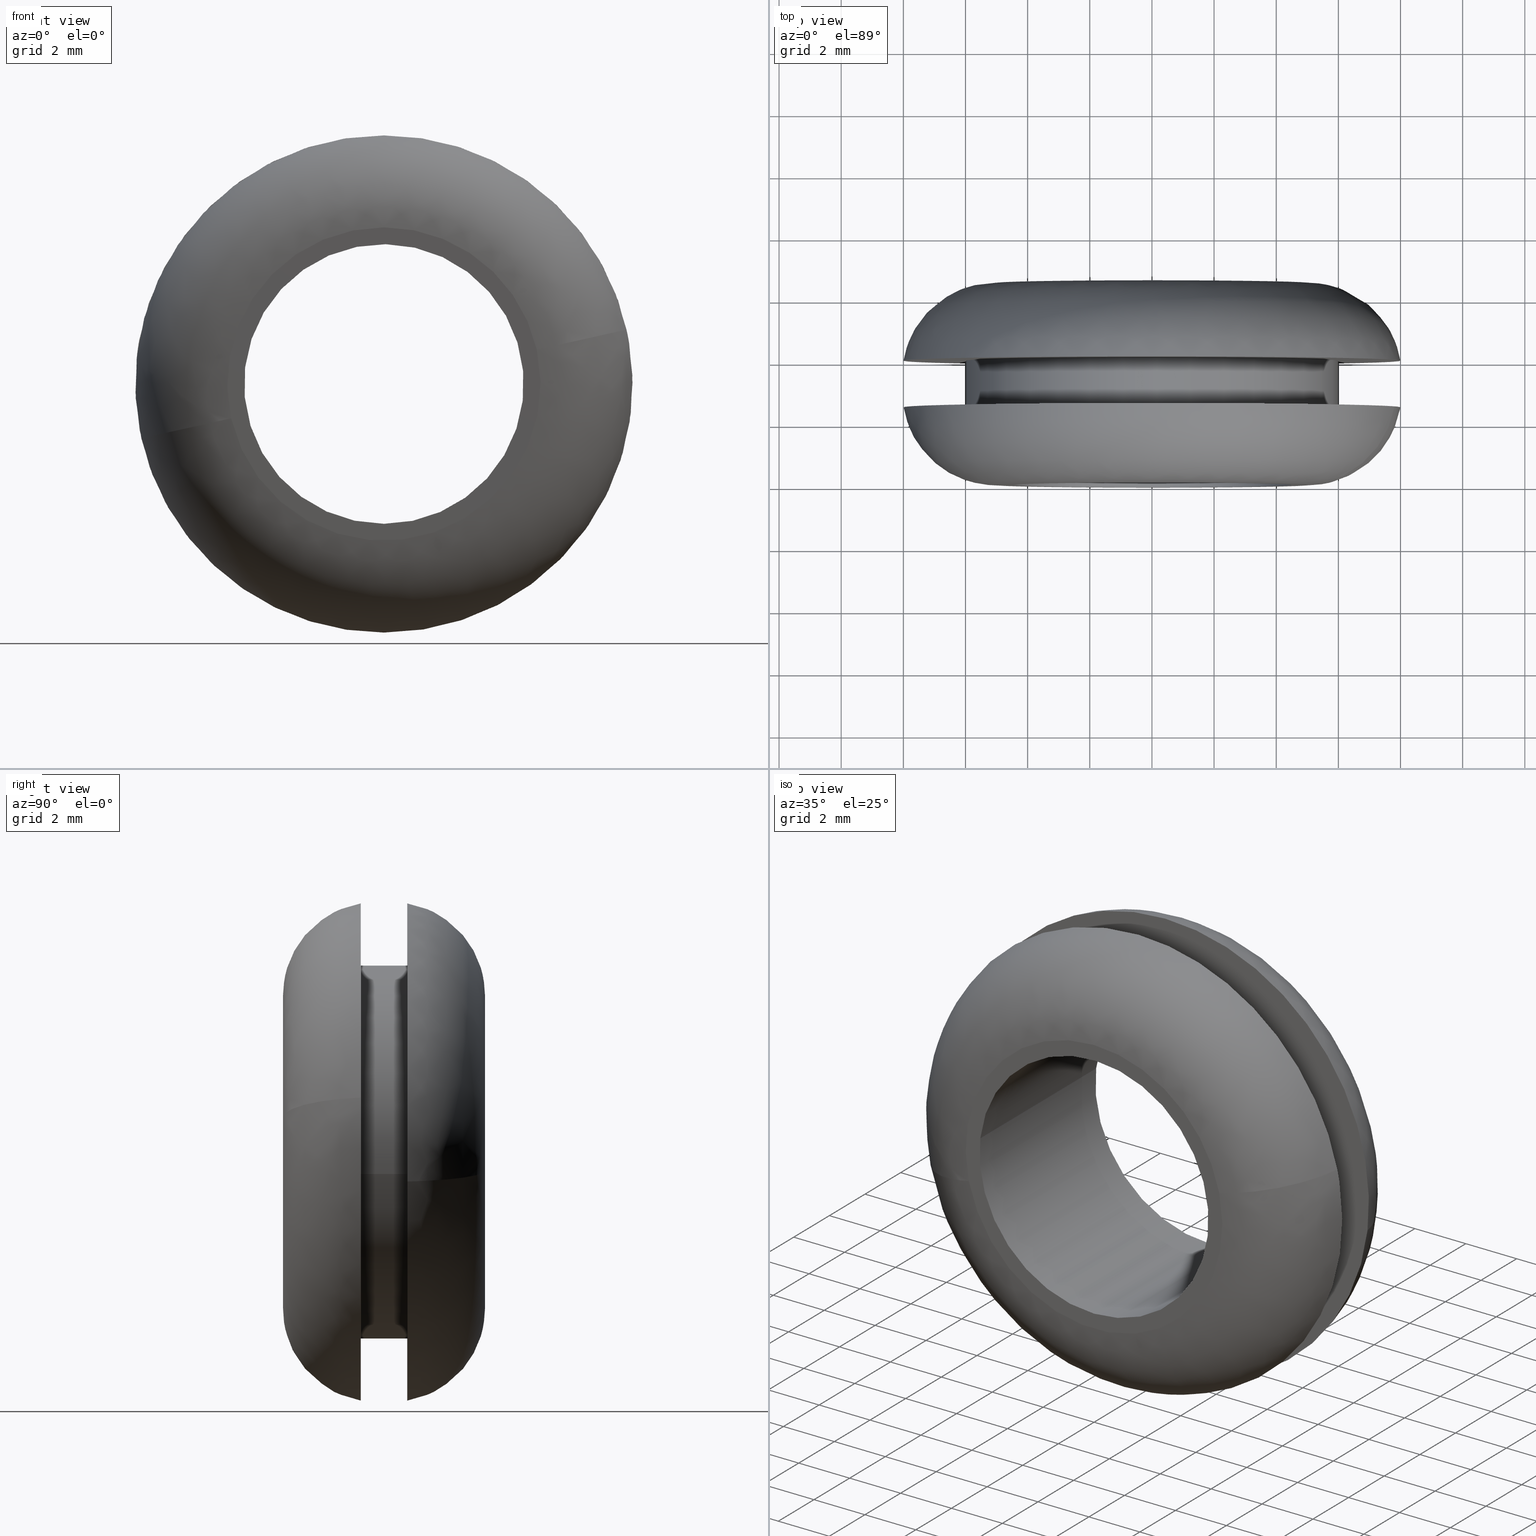
[diagram: canonical four-view strip — front | top / right | iso, engineering-drawing reading convention]
A machine part, canonical four-view strip (front | top / right | iso — engineering-drawing reading convention). The complete STEP part file that produces these views, byte-faithful:
ISO-10303-21;
HEADER;

FILE_DESCRIPTION( (''), '2;1');
FILE_NAME ('PC50.12492.TM_KG_16_CRUL_7944.stp','2019-12-19T11:13:17',(''),(''),'spGate 15.6.1','','');

FILE_SCHEMA (('AUTOMOTIVE_DESIGN'));
ENDSEC;

DATA;
#10=(GEOMETRIC_REPRESENTATION_CONTEXT(3) GLOBAL_UNCERTAINTY_ASSIGNED_CONTEXT((#11)) GLOBAL_UNIT_ASSIGNED_CONTEXT((#12,#13,#14)) REPRESENTATION_CONTEXT('ID1','3D'));
#11=UNCERTAINTY_MEASURE_WITH_UNIT(LENGTH_MEASURE(0.01),#15,'DISTANCE_ACCURACY_VALUE','Maximum model space distance between geometric entities at asserted connectivities');
#12=(NAMED_UNIT(*) SI_UNIT($,.STERADIAN.) SOLID_ANGLE_UNIT());
#13=(CONVERSION_BASED_UNIT('DEGREE',#16) NAMED_UNIT(#17) PLANE_ANGLE_UNIT());
#14=(LENGTH_UNIT() NAMED_UNIT(*) SI_UNIT(.MILLI.,.METRE.));
#15=(LENGTH_UNIT() NAMED_UNIT(*) SI_UNIT(.MILLI.,.METRE.));
#16=PLANE_ANGLE_MEASURE_WITH_UNIT(PLANE_ANGLE_MEASURE(0.01745329252),#18);
#17=DIMENSIONAL_EXPONENTS(0.0,0.0,0.0,0.0,0.0,0.0,0.0);
#18=(NAMED_UNIT(*) PLANE_ANGLE_UNIT() SI_UNIT($,.RADIAN.));
#19=MANIFOLD_SOLID_BREP('TM_KG_16',#31);
#20=ADVANCED_BREP_SHAPE_REPRESENTATION('',(#19),#10);
#21=APPLICATION_CONTEXT('');
#22=APPLICATION_PROTOCOL_DEFINITION('International Standard','automotive_design',1999,#21);
#23=PRODUCT_DEFINITION_CONTEXT('',#21,'design');
#24=PRODUCT_CONTEXT('',#21,'mechanical');
#25=PRODUCT('','','',(#24));
#26=PRODUCT_DEFINITION_FORMATION_WITH_SPECIFIED_SOURCE('','',#25,.NOT_KNOWN.);
#27=PRODUCT_RELATED_PRODUCT_CATEGORY('tool','tool',(#25));
#28=PRODUCT_DEFINITION('','',#26,#23);
#29=PRODUCT_DEFINITION_SHAPE('','',#28);
#30=SHAPE_DEFINITION_REPRESENTATION(#29,#20);
#31=CLOSED_SHELL('',(#40,#41,#42,#43,#44,#45,#46,#47,#48,#49,#50,#51));
#32=COLOUR_RGB('',0.00000000000E+000,0.00000000000E+000,0.00000000000E+000);
#33=FILL_AREA_STYLE_COLOUR('',#32);
#34=FILL_AREA_STYLE('',(#33));
#35=SURFACE_STYLE_FILL_AREA(#34);
#36=SURFACE_SIDE_STYLE('',(#35));
#37=SURFACE_STYLE_USAGE(.BOTH.,#36);
#38=PRESENTATION_STYLE_ASSIGNMENT((#37));
#39=STYLED_ITEM('',(#38),#19);
#40=ADVANCED_FACE('',(#53,#54),#52,.F.);
#41=ADVANCED_FACE('',(#64,#65),#63,.F.);
#42=ADVANCED_FACE('',(#75,#76),#74,.F.);
#43=ADVANCED_FACE('',(#86,#87),#85,.F.);
#44=ADVANCED_FACE('',(#97),#96,.T.);
#45=ADVANCED_FACE('',(#107),#106,.T.);
#46=ADVANCED_FACE('',(#117),#116,.F.);
#47=ADVANCED_FACE('',(#127),#126,.F.);
#48=ADVANCED_FACE('',(#137),#136,.T.);
#49=ADVANCED_FACE('',(#147),#146,.T.);
#50=ADVANCED_FACE('',(#157),#156,.T.);
#51=ADVANCED_FACE('',(#167),#166,.T.);
#52=PLANE('',#179);
#53=FACE_OUTER_BOUND('',#180,.T.);
#54=FACE_BOUND('',#181,.T.);
#55=COLOUR_RGB('',1.00000000000E+000,1.00000000000E+000,1.00000000000E+000);
#56=FILL_AREA_STYLE_COLOUR('',#55);
#57=FILL_AREA_STYLE('',(#56));
#58=SURFACE_STYLE_FILL_AREA(#57);
#59=SURFACE_SIDE_STYLE('',(#58));
#60=SURFACE_STYLE_USAGE(.BOTH.,#59);
#61=PRESENTATION_STYLE_ASSIGNMENT((#60));
#62=STYLED_ITEM('',(#61),#40);
#63=PLANE('',#185);
#64=FACE_OUTER_BOUND('',#186,.T.);
#65=FACE_BOUND('',#187,.T.);
#66=COLOUR_RGB('',1.00000000000E+000,1.00000000000E+000,1.00000000000E+000);
#67=FILL_AREA_STYLE_COLOUR('',#66);
#68=FILL_AREA_STYLE('',(#67));
#69=SURFACE_STYLE_FILL_AREA(#68);
#70=SURFACE_SIDE_STYLE('',(#69));
#71=SURFACE_STYLE_USAGE(.BOTH.,#70);
#72=PRESENTATION_STYLE_ASSIGNMENT((#71));
#73=STYLED_ITEM('',(#72),#41);
#74=PLANE('',#191);
#75=FACE_OUTER_BOUND('',#192,.T.);
#76=FACE_BOUND('',#193,.T.);
#77=COLOUR_RGB('',1.00000000000E+000,1.00000000000E+000,1.00000000000E+000);
#78=FILL_AREA_STYLE_COLOUR('',#77);
#79=FILL_AREA_STYLE('',(#78));
#80=SURFACE_STYLE_FILL_AREA(#79);
#81=SURFACE_SIDE_STYLE('',(#80));
#82=SURFACE_STYLE_USAGE(.BOTH.,#81);
#83=PRESENTATION_STYLE_ASSIGNMENT((#82));
#84=STYLED_ITEM('',(#83),#42);
#85=PLANE('',#197);
#86=FACE_OUTER_BOUND('',#198,.T.);
#87=FACE_BOUND('',#199,.T.);
#88=COLOUR_RGB('',1.00000000000E+000,1.00000000000E+000,1.00000000000E+000);
#89=FILL_AREA_STYLE_COLOUR('',#88);
#90=FILL_AREA_STYLE('',(#89));
#91=SURFACE_STYLE_FILL_AREA(#90);
#92=SURFACE_SIDE_STYLE('',(#91));
#93=SURFACE_STYLE_USAGE(.BOTH.,#92);
#94=PRESENTATION_STYLE_ASSIGNMENT((#93));
#95=STYLED_ITEM('',(#94),#43);
#96=CYLINDRICAL_SURFACE('',#203,6.00000000000E+000);
#97=FACE_OUTER_BOUND('',#204,.T.);
#98=COLOUR_RGB('',1.00000000000E+000,1.00000000000E+000,1.00000000000E+000);
#99=FILL_AREA_STYLE_COLOUR('',#98);
#100=FILL_AREA_STYLE('',(#99));
#101=SURFACE_STYLE_FILL_AREA(#100);
#102=SURFACE_SIDE_STYLE('',(#101));
#103=SURFACE_STYLE_USAGE(.BOTH.,#102);
#104=PRESENTATION_STYLE_ASSIGNMENT((#103));
#105=STYLED_ITEM('',(#104),#44);
#106=CYLINDRICAL_SURFACE('',#208,6.00000000000E+000);
#107=FACE_OUTER_BOUND('',#209,.T.);
#108=COLOUR_RGB('',1.00000000000E+000,1.00000000000E+000,1.00000000000E+000);
#109=FILL_AREA_STYLE_COLOUR('',#108);
#110=FILL_AREA_STYLE('',(#109));
#111=SURFACE_STYLE_FILL_AREA(#110);
#112=SURFACE_SIDE_STYLE('',(#111));
#113=SURFACE_STYLE_USAGE(.BOTH.,#112);
#114=PRESENTATION_STYLE_ASSIGNMENT((#113));
#115=STYLED_ITEM('',(#114),#45);
#116=CYLINDRICAL_SURFACE('',#213,4.50000000000E+000);
#117=FACE_OUTER_BOUND('',#214,.T.);
#118=COLOUR_RGB('',1.00000000000E+000,1.00000000000E+000,1.00000000000E+000);
#119=FILL_AREA_STYLE_COLOUR('',#118);
#120=FILL_AREA_STYLE('',(#119));
#121=SURFACE_STYLE_FILL_AREA(#120);
#122=SURFACE_SIDE_STYLE('',(#121));
#123=SURFACE_STYLE_USAGE(.BOTH.,#122);
#124=PRESENTATION_STYLE_ASSIGNMENT((#123));
#125=STYLED_ITEM('',(#124),#46);
#126=CYLINDRICAL_SURFACE('',#218,4.50000000000E+000);
#127=FACE_OUTER_BOUND('',#219,.T.);
#128=COLOUR_RGB('',1.00000000000E+000,1.00000000000E+000,1.00000000000E+000);
#129=FILL_AREA_STYLE_COLOUR('',#128);
#130=FILL_AREA_STYLE('',(#129));
#131=SURFACE_STYLE_FILL_AREA(#130);
#132=SURFACE_SIDE_STYLE('',(#131));
#133=SURFACE_STYLE_USAGE(.BOTH.,#132);
#134=PRESENTATION_STYLE_ASSIGNMENT((#133));
#135=STYLED_ITEM('',(#134),#47);
#136=( BOUNDED_SURFACE() B_SPLINE_SURFACE( 2,2,((#220,#221,#222,#223,#224),(#225,#226,#227,#228,#229),(#230,#231,#232,#233,#234),(#235,#236,#237,#238,#239),(#240,#241,#242,#243,#244)), .UNSPECIFIED.,.F.,.F.,.F.) B_SPLINE_SURFACE_WITH_KNOTS((3,2,3),(3,2,3),(0.00000000000E+000,5.00000000000E-001,1.00000000000E+000),(0.00000000000E+000,5.00000000000E-001,1.00000000000E+000), .UNSPECIFIED. ) GEOMETRIC_REPRESENTATION_ITEM() RATIONAL_B_SPLINE_SURFACE(((1.00000000000E+000,7.63657505014E-001,1.00000000000E+000,7.63657505014E-001,1.00000000000E+000),(7.07106781187E-001,5.39987400299E-001,7.07106781187E-001,5.39987400299E-001,7.07106781187E-001),(1.00000000000E+000,7.63657505014E-001,1.00000000000E+000,7.63657505014E-001,1.00000000000E+000),(7.07106781187E-001,5.39987400299E-001,7.07106781187E-001,5.39987400299E-001,7.07106781187E-001),(1.00000000000E+000,7.63657505014E-001,1.00000000000E+000,7.63657505014E-001,1.00000000000E+000))) REPRESENTATION_ITEM('') SURFACE() );
#137=FACE_OUTER_BOUND('',#245,.T.);
#138=COLOUR_RGB('',1.00000000000E+000,1.00000000000E+000,1.00000000000E+000);
#139=FILL_AREA_STYLE_COLOUR('',#138);
#140=FILL_AREA_STYLE('',(#139));
#141=SURFACE_STYLE_FILL_AREA(#140);
#142=SURFACE_SIDE_STYLE('',(#141));
#143=SURFACE_STYLE_USAGE(.BOTH.,#142);
#144=PRESENTATION_STYLE_ASSIGNMENT((#143));
#145=STYLED_ITEM('',(#144),#48);
#146=( BOUNDED_SURFACE() B_SPLINE_SURFACE( 2,2,((#246,#247,#248,#249,#250),(#251,#252,#253,#254,#255),(#256,#257,#258,#259,#260),(#261,#262,#263,#264,#265),(#266,#267,#268,#269,#270)), .UNSPECIFIED.,.F.,.F.,.F.) B_SPLINE_SURFACE_WITH_KNOTS((3,2,3),(3,2,3),(0.00000000000E+000,5.00000000000E-001,1.00000000000E+000),(0.00000000000E+000,5.00000000000E-001,1.00000000000E+000), .UNSPECIFIED. ) GEOMETRIC_REPRESENTATION_ITEM() RATIONAL_B_SPLINE_SURFACE(((1.00000000000E+000,7.63657505014E-001,1.00000000000E+000,7.63657505014E-001,1.00000000000E+000),(7.07106781187E-001,5.39987400299E-001,7.07106781187E-001,5.39987400299E-001,7.07106781187E-001),(1.00000000000E+000,7.63657505014E-001,1.00000000000E+000,7.63657505014E-001,1.00000000000E+000),(7.07106781187E-001,5.39987400299E-001,7.07106781187E-001,5.39987400299E-001,7.07106781187E-001),(1.00000000000E+000,7.63657505014E-001,1.00000000000E+000,7.63657505014E-001,1.00000000000E+000))) REPRESENTATION_ITEM('') SURFACE() );
#147=FACE_OUTER_BOUND('',#271,.T.);
#148=COLOUR_RGB('',1.00000000000E+000,1.00000000000E+000,1.00000000000E+000);
#149=FILL_AREA_STYLE_COLOUR('',#148);
#150=FILL_AREA_STYLE('',(#149));
#151=SURFACE_STYLE_FILL_AREA(#150);
#152=SURFACE_SIDE_STYLE('',(#151));
#153=SURFACE_STYLE_USAGE(.BOTH.,#152);
#154=PRESENTATION_STYLE_ASSIGNMENT((#153));
#155=STYLED_ITEM('',(#154),#49);
#156=( BOUNDED_SURFACE() B_SPLINE_SURFACE( 2,2,((#272,#273,#274,#275,#276),(#277,#278,#279,#280,#281),(#282,#283,#284,#285,#286),(#287,#288,#289,#290,#291),(#292,#293,#294,#295,#296)), .UNSPECIFIED.,.F.,.F.,.F.) B_SPLINE_SURFACE_WITH_KNOTS((3,2,3),(3,2,3),(0.00000000000E+000,5.00000000000E-001,1.00000000000E+000),(0.00000000000E+000,5.00000000000E-001,1.00000000000E+000), .UNSPECIFIED. ) GEOMETRIC_REPRESENTATION_ITEM() RATIONAL_B_SPLINE_SURFACE(((1.00000000000E+000,7.63668789557E-001,1.00000000000E+000,7.63668789557E-001,1.00000000000E+000),(7.07106781187E-001,5.39995379676E-001,7.07106781187E-001,5.39995379676E-001,7.07106781187E-001),(1.00000000000E+000,7.63668789557E-001,1.00000000000E+000,7.63668789557E-001,1.00000000000E+000),(7.07106781187E-001,5.39995379676E-001,7.07106781187E-001,5.39995379676E-001,7.07106781187E-001),(1.00000000000E+000,7.63668789557E-001,1.00000000000E+000,7.63668789557E-001,1.00000000000E+000))) REPRESENTATION_ITEM('') SURFACE() );
#157=FACE_OUTER_BOUND('',#297,.T.);
#158=COLOUR_RGB('',1.00000000000E+000,1.00000000000E+000,1.00000000000E+000);
#159=FILL_AREA_STYLE_COLOUR('',#158);
#160=FILL_AREA_STYLE('',(#159));
#161=SURFACE_STYLE_FILL_AREA(#160);
#162=SURFACE_SIDE_STYLE('',(#161));
#163=SURFACE_STYLE_USAGE(.BOTH.,#162);
#164=PRESENTATION_STYLE_ASSIGNMENT((#163));
#165=STYLED_ITEM('',(#164),#50);
#166=( BOUNDED_SURFACE() B_SPLINE_SURFACE( 2,2,((#298,#299,#300,#301,#302),(#303,#304,#305,#306,#307),(#308,#309,#310,#311,#312),(#313,#314,#315,#316,#317),(#318,#319,#320,#321,#322)), .UNSPECIFIED.,.F.,.F.,.F.) B_SPLINE_SURFACE_WITH_KNOTS((3,2,3),(3,2,3),(0.00000000000E+000,5.00000000000E-001,1.00000000000E+000),(0.00000000000E+000,5.00000000000E-001,1.00000000000E+000), .UNSPECIFIED. ) GEOMETRIC_REPRESENTATION_ITEM() RATIONAL_B_SPLINE_SURFACE(((1.00000000000E+000,7.63668789557E-001,1.00000000000E+000,7.63668789557E-001,1.00000000000E+000),(7.07106781187E-001,5.39995379676E-001,7.07106781187E-001,5.39995379676E-001,7.07106781187E-001),(1.00000000000E+000,7.63668789557E-001,1.00000000000E+000,7.63668789557E-001,1.00000000000E+000),(7.07106781187E-001,5.39995379676E-001,7.07106781187E-001,5.39995379676E-001,7.07106781187E-001),(1.00000000000E+000,7.63668789557E-001,1.00000000000E+000,7.63668789557E-001,1.00000000000E+000))) REPRESENTATION_ITEM('') SURFACE() );
#167=FACE_OUTER_BOUND('',#323,.T.);
#168=COLOUR_RGB('',1.00000000000E+000,1.00000000000E+000,1.00000000000E+000);
#169=FILL_AREA_STYLE_COLOUR('',#168);
#170=FILL_AREA_STYLE('',(#169));
#171=SURFACE_STYLE_FILL_AREA(#170);
#172=SURFACE_SIDE_STYLE('',(#171));
#173=SURFACE_STYLE_USAGE(.BOTH.,#172);
#174=PRESENTATION_STYLE_ASSIGNMENT((#173));
#175=STYLED_ITEM('',(#174),#51);
#176=CARTESIAN_POINT('',(-1.14033918207E+001,3.99999999414E+000,-9.59999998990E+000));
#177=DIRECTION('',(0.00000000000E+000,1.00000000000E+000,0.00000000000E+000));
#178=DIRECTION('',(0.00000000000E+000,0.00000000000E+000,1.00000000000E+000));
#179=AXIS2_PLACEMENT_3D('',#176,#177,#178);
#180=EDGE_LOOP('',(#324,#325,#326,#327,#328));
#181=EDGE_LOOP('',(#329,#330,#331));
#182=CARTESIAN_POINT('',(-1.04795170677E+001,6.50000000000E+000,1.15965080000E+001));
#183=DIRECTION('',(0.00000000000E+000,-1.00000000000E+000,0.00000000000E+000));
#184=DIRECTION('',(0.00000000000E+000,0.00000000000E+000,-1.00000000000E+000));
#185=AXIS2_PLACEMENT_3D('',#182,#183,#184);
#186=EDGE_LOOP('',(#332,#333,#334));
#187=EDGE_LOOP('',(#335,#336,#337));
#188=CARTESIAN_POINT('',(-1.19344541311E+001,2.50000000000E+000,9.60000014521E+000));
#189=DIRECTION('',(0.00000000000E+000,-1.00000000000E+000,0.00000000000E+000));
#190=DIRECTION('',(0.00000000000E+000,0.00000000000E+000,-1.00000000000E+000));
#191=AXIS2_PLACEMENT_3D('',#188,#189,#190);
#192=EDGE_LOOP('',(#338,#339,#340,#341,#342));
#193=EDGE_LOOP('',(#343,#344,#345));
#194=CARTESIAN_POINT('',(-1.04795170681E+001,-8.76385900000E-016,-1.15965080003E+001));
#195=DIRECTION('',(0.00000000000E+000,1.00000000000E+000,0.00000000000E+000));
#196=DIRECTION('',(0.00000000000E+000,0.00000000000E+000,1.00000000000E+000));
#197=AXIS2_PLACEMENT_3D('',#194,#195,#196);
#198=EDGE_LOOP('',(#346,#347,#348));
#199=EDGE_LOOP('',(#349,#350,#351));
#200=CARTESIAN_POINT('',(4.70539397474E-016,4.03750000000E+000,1.82735762207E-016));
#201=DIRECTION('',(1.41441697970E-016,1.00000000000E+000,1.81699675896E-015));
#202=DIRECTION('',(-9.93009526364E-001,-7.40148683083E-017,1.18034234657E-001));
#203=AXIS2_PLACEMENT_3D('',#200,#201,#202);
#204=EDGE_LOOP('',(#352,#353,#354,#355));
#205=CARTESIAN_POINT('',(4.70539397474E-016,4.03750000000E+000,1.82735762207E-016));
#206=DIRECTION('',(1.41441697970E-016,1.00000000000E+000,1.81699675896E-015));
#207=DIRECTION('',(-9.93009526364E-001,-7.40148683083E-017,1.18034234657E-001));
#208=AXIS2_PLACEMENT_3D('',#205,#206,#207);
#209=EDGE_LOOP('',(#356,#357,#358,#359,#360,#361));
#210=CARTESIAN_POINT('',(-3.48595419141E-016,6.66250000000E+000,-7.89650400714E-015));
#211=DIRECTION('',(-1.70677333352E-016,1.00000000000E+000,-2.27197397273E-015));
#212=DIRECTION('',(-9.93009526364E-001,9.86864910778E-017,1.18034234657E-001));
#213=AXIS2_PLACEMENT_3D('',#210,#211,#212);
#214=EDGE_LOOP('',(#362,#363,#364,#365));
#215=CARTESIAN_POINT('',(-3.48595419141E-016,6.66250000000E+000,-7.89650400714E-015));
#216=DIRECTION('',(-1.70677333352E-016,1.00000000000E+000,-2.27197397273E-015));
#217=DIRECTION('',(-9.93009526364E-001,9.86864910778E-017,1.18034234657E-001));
#218=AXIS2_PLACEMENT_3D('',#215,#216,#217);
#219=EDGE_LOOP('',(#366,#367,#368,#369,#370,#371));
#220=CARTESIAN_POINT('',(-2.06909352512E+000,3.99903670978E+000,2.46773316555E-001));
#221=CARTESIAN_POINT('',(-2.48802680367E+000,6.50000000000E+000,2.96737976591E-001));
#222=CARTESIAN_POINT('',(-5.00647847470E+000,6.50000000000E+000,5.97104617295E-001));
#223=CARTESIAN_POINT('',(-7.52493014572E+000,6.50000000000E+000,8.97471258000E-001));
#224=CARTESIAN_POINT('',(-7.94386342428E+000,3.99903670978E+000,9.47435918035E-001));
#225=CARTESIAN_POINT('',(-2.31586684167E+000,3.99903670978E+000,-1.82232020856E+000));
#226=CARTESIAN_POINT('',(-2.78476478026E+000,6.50000000000E+000,-2.19128882708E+000));
#227=CARTESIAN_POINT('',(-5.60358309199E+000,6.50000000000E+000,-4.40937385740E+000));
#228=CARTESIAN_POINT('',(-8.42240140372E+000,6.50000000000E+000,-6.62745888772E+000));
#229=CARTESIAN_POINT('',(-8.89129934231E+000,3.99903670978E+000,-6.99642750624E+000));
#230=CARTESIAN_POINT('',(-2.46773316555E-001,3.99903670978E+000,-2.06909352512E+000));
#231=CARTESIAN_POINT('',(-2.96737976591E-001,6.50000000000E+000,-2.48802680367E+000));
#232=CARTESIAN_POINT('',(-5.97104617295E-001,6.50000000000E+000,-5.00647847470E+000));
#233=CARTESIAN_POINT('',(-8.97471258000E-001,6.50000000000E+000,-7.52493014572E+000));
#234=CARTESIAN_POINT('',(-9.47435918035E-001,3.99903670978E+000,-7.94386342428E+000));
#235=CARTESIAN_POINT('',(1.82232020856E+000,3.99903670978E+000,-2.31586684167E+000));
#236=CARTESIAN_POINT('',(2.19128882708E+000,6.50000000000E+000,-2.78476478026E+000));
#237=CARTESIAN_POINT('',(4.40937385740E+000,6.50000000000E+000,-5.60358309199E+000));
#238=CARTESIAN_POINT('',(6.62745888772E+000,6.50000000000E+000,-8.42240140372E+000));
#239=CARTESIAN_POINT('',(6.99642750624E+000,3.99903670978E+000,-8.89129934231E+000));
#240=CARTESIAN_POINT('',(2.06909352512E+000,3.99903670978E+000,-2.46773316555E-001));
#241=CARTESIAN_POINT('',(2.48802680367E+000,6.50000000000E+000,-2.96737976591E-001));
#242=CARTESIAN_POINT('',(5.00647847470E+000,6.50000000000E+000,-5.97104617295E-001));
#243=CARTESIAN_POINT('',(7.52493014572E+000,6.50000000000E+000,-8.97471258000E-001));
#244=CARTESIAN_POINT('',(7.94386342428E+000,3.99903670978E+000,-9.47435918035E-001));
#245=EDGE_LOOP('',(#372,#373,#374,#375,#376,#377));
#246=CARTESIAN_POINT('',(2.06909352512E+000,3.99903670978E+000,-2.46773316555E-001));
#247=CARTESIAN_POINT('',(2.48802680367E+000,6.50000000000E+000,-2.96737976591E-001));
#248=CARTESIAN_POINT('',(5.00647847470E+000,6.50000000000E+000,-5.97104617295E-001));
#249=CARTESIAN_POINT('',(7.52493014572E+000,6.50000000000E+000,-8.97471258000E-001));
#250=CARTESIAN_POINT('',(7.94386342428E+000,3.99903670978E+000,-9.47435918035E-001));
#251=CARTESIAN_POINT('',(2.31586684167E+000,3.99903670978E+000,1.82232020856E+000));
#252=CARTESIAN_POINT('',(2.78476478026E+000,6.50000000000E+000,2.19128882708E+000));
#253=CARTESIAN_POINT('',(5.60358309199E+000,6.50000000000E+000,4.40937385740E+000));
#254=CARTESIAN_POINT('',(8.42240140372E+000,6.50000000000E+000,6.62745888772E+000));
#255=CARTESIAN_POINT('',(8.89129934231E+000,3.99903670978E+000,6.99642750624E+000));
#256=CARTESIAN_POINT('',(2.46773316555E-001,3.99903670978E+000,2.06909352512E+000));
#257=CARTESIAN_POINT('',(2.96737976591E-001,6.50000000000E+000,2.48802680367E+000));
#258=CARTESIAN_POINT('',(5.97104617295E-001,6.50000000000E+000,5.00647847470E+000));
#259=CARTESIAN_POINT('',(8.97471258000E-001,6.50000000000E+000,7.52493014572E+000));
#260=CARTESIAN_POINT('',(9.47435918035E-001,3.99903670978E+000,7.94386342428E+000));
#261=CARTESIAN_POINT('',(-1.82232020856E+000,3.99903670978E+000,2.31586684167E+000));
#262=CARTESIAN_POINT('',(-2.19128882708E+000,6.50000000000E+000,2.78476478026E+000));
#263=CARTESIAN_POINT('',(-4.40937385740E+000,6.50000000000E+000,5.60358309199E+000));
#264=CARTESIAN_POINT('',(-6.62745888772E+000,6.50000000000E+000,8.42240140372E+000));
#265=CARTESIAN_POINT('',(-6.99642750624E+000,3.99903670978E+000,8.89129934231E+000));
#266=CARTESIAN_POINT('',(-2.06909352512E+000,3.99903670978E+000,2.46773316555E-001));
#267=CARTESIAN_POINT('',(-2.48802680367E+000,6.50000000000E+000,2.96737976591E-001));
#268=CARTESIAN_POINT('',(-5.00647847470E+000,6.50000000000E+000,5.97104617295E-001));
#269=CARTESIAN_POINT('',(-7.52493014572E+000,6.50000000000E+000,8.97471258000E-001));
#270=CARTESIAN_POINT('',(-7.94386342428E+000,3.99903670978E+000,9.47435918035E-001));
#271=EDGE_LOOP('',(#378,#379,#380,#381,#382,#383));
#272=CARTESIAN_POINT('',(7.80629619409E+000,2.50085987914E+000,1.75044608514E+000));
#273=CARTESIAN_POINT('',(7.39454615052E+000,-5.81520701020E-016,1.65811724776E+000));
#274=CARTESIAN_POINT('',(4.91978990655E+000,-8.88178419700E-016,1.10318988257E+000));
#275=CARTESIAN_POINT('',(2.44503366258E+000,-1.16304140204E-015,5.48262517369E-001));
#276=CARTESIAN_POINT('',(2.03328361902E+000,2.50085987914E+000,4.55933679993E-001));
#277=CARTESIAN_POINT('',(6.05585010895E+000,2.50085987914E+000,9.55674227922E+000));
#278=CARTESIAN_POINT('',(5.73642890276E+000,2.40873761163E-016,9.05266339828E+000));
#279=CARTESIAN_POINT('',(3.81660002399E+000,-2.60141436227E-016,6.02297978912E+000));
#280=CARTESIAN_POINT('',(1.89677114522E+000,-1.16304140204E-015,2.99329617995E+000));
#281=CARTESIAN_POINT('',(1.57734993902E+000,2.50085987914E+000,2.48921729901E+000));
#282=CARTESIAN_POINT('',(-1.75044608514E+000,2.50085987914E+000,7.80629619409E+000));
#283=CARTESIAN_POINT('',(-1.65811724776E+000,5.81520701020E-016,7.39454615052E+000));
#284=CARTESIAN_POINT('',(-1.10318988257E+000,-4.44089209850E-016,4.91978990655E+000));
#285=CARTESIAN_POINT('',(-5.48262517369E-001,-5.81520701020E-016,2.44503366258E+000));
#286=CARTESIAN_POINT('',(-4.55933679993E-001,2.50085987914E+000,2.03328361902E+000));
#287=CARTESIAN_POINT('',(-9.55674227922E+000,2.50085987914E+000,6.05585010895E+000));
#288=CARTESIAN_POINT('',(-9.05266339828E+000,-3.40646939857E-016,5.73642890276E+000));
#289=CARTESIAN_POINT('',(-6.02297978912E+000,-7.04230646077E-016,3.81660002399E+000));
#290=CARTESIAN_POINT('',(-2.99329617995E+000,-1.16304140204E-015,1.89677114522E+000));
#291=CARTESIAN_POINT('',(-2.48921729901E+000,2.50085987914E+000,1.57734993902E+000));
#292=CARTESIAN_POINT('',(-7.80629619409E+000,2.50085987914E+000,-1.75044608514E+000));
#293=CARTESIAN_POINT('',(-7.39454615052E+000,-1.16304140204E-015,-1.65811724776E+000));
#294=CARTESIAN_POINT('',(-4.91978990655E+000,-1.33226762955E-015,-1.10318988257E+000));
#295=CARTESIAN_POINT('',(-2.44503366258E+000,-1.16304140204E-015,-5.48262517369E-001));
#296=CARTESIAN_POINT('',(-2.03328361902E+000,2.50085987914E+000,-4.55933679993E-001));
#297=EDGE_LOOP('',(#384,#385,#386,#387,#388,#389));
#298=CARTESIAN_POINT('',(-7.80629619409E+000,2.50085987914E+000,-1.75044608514E+000));
#299=CARTESIAN_POINT('',(-7.39454615052E+000,-5.81520701020E-016,-1.65811724776E+000));
#300=CARTESIAN_POINT('',(-4.91978990655E+000,-1.77635683940E-015,-1.10318988257E+000));
#301=CARTESIAN_POINT('',(-2.44503366258E+000,-1.74456210306E-015,-5.48262517369E-001));
#302=CARTESIAN_POINT('',(-2.03328361902E+000,2.50085987914E+000,-4.55933679993E-001));
#303=CARTESIAN_POINT('',(-6.05585010895E+000,2.50085987914E+000,-9.55674227922E+000));
#304=CARTESIAN_POINT('',(-5.73642890276E+000,-1.40391516320E-015,-9.05266339828E+000));
#305=CARTESIAN_POINT('',(-3.81660002399E+000,-2.40439382287E-015,-6.02297978912E+000));
#306=CARTESIAN_POINT('',(-1.89677114522E+000,-1.74456210306E-015,-2.99329617995E+000));
#307=CARTESIAN_POINT('',(-1.57734993902E+000,2.50085987914E+000,-2.48921729901E+000));
#308=CARTESIAN_POINT('',(1.75044608514E+000,2.50085987914E+000,-7.80629619409E+000));
#309=CARTESIAN_POINT('',(1.65811724776E+000,-1.74456210306E-015,-7.39454615052E+000));
#310=CARTESIAN_POINT('',(1.10318988257E+000,-2.22044604925E-015,-4.91978990655E+000));
#311=CARTESIAN_POINT('',(5.48262517369E-001,-2.32608280408E-015,-2.44503366258E+000));
#312=CARTESIAN_POINT('',(4.55933679993E-001,2.50085987914E+000,-2.03328361902E+000));
#313=CARTESIAN_POINT('',(9.55674227922E+000,2.50085987914E+000,-6.05585010895E+000));
#314=CARTESIAN_POINT('',(9.05266339828E+000,-8.22394462183E-016,-5.73642890276E+000));
#315=CARTESIAN_POINT('',(6.02297978912E+000,-1.96030461302E-015,-3.81660002399E+000));
#316=CARTESIAN_POINT('',(2.99329617995E+000,-1.74456210306E-015,-1.89677114522E+000));
#317=CARTESIAN_POINT('',(2.48921729901E+000,2.50085987914E+000,-1.57734993902E+000));
#318=CARTESIAN_POINT('',(7.80629619409E+000,2.50085987914E+000,1.75044608514E+000));
#319=CARTESIAN_POINT('',(7.39454615052E+000,0.00000000000E+000,1.65811724776E+000));
#320=CARTESIAN_POINT('',(4.91978990655E+000,-1.33226762955E-015,1.10318988257E+000));
#321=CARTESIAN_POINT('',(2.44503366258E+000,-1.74456210306E-015,5.48262517369E-001));
#322=CARTESIAN_POINT('',(2.03328361902E+000,2.50085987914E+000,4.55933679993E-001));
#323=EDGE_LOOP('',(#390,#391,#392,#393,#394,#395));
#324=ORIENTED_EDGE('',*,*,#396,.T.);
#325=ORIENTED_EDGE('',*,*,#397,.T.);
#326=ORIENTED_EDGE('',*,*,#398,.T.);
#327=ORIENTED_EDGE('',*,*,#399,.T.);
#328=ORIENTED_EDGE('',*,*,#400,.T.);
#329=ORIENTED_EDGE('',*,*,#401,.F.);
#330=ORIENTED_EDGE('',*,*,#402,.F.);
#331=ORIENTED_EDGE('',*,*,#403,.F.);
#332=ORIENTED_EDGE('',*,*,#404,.F.);
#333=ORIENTED_EDGE('',*,*,#405,.F.);
#334=ORIENTED_EDGE('',*,*,#406,.F.);
#335=ORIENTED_EDGE('',*,*,#407,.T.);
#336=ORIENTED_EDGE('',*,*,#408,.T.);
#337=ORIENTED_EDGE('',*,*,#409,.T.);
#338=ORIENTED_EDGE('',*,*,#410,.F.);
#339=ORIENTED_EDGE('',*,*,#411,.F.);
#340=ORIENTED_EDGE('',*,*,#412,.F.);
#341=ORIENTED_EDGE('',*,*,#413,.F.);
#342=ORIENTED_EDGE('',*,*,#414,.F.);
#343=ORIENTED_EDGE('',*,*,#415,.T.);
#344=ORIENTED_EDGE('',*,*,#416,.T.);
#345=ORIENTED_EDGE('',*,*,#417,.T.);
#346=ORIENTED_EDGE('',*,*,#418,.T.);
#347=ORIENTED_EDGE('',*,*,#419,.T.);
#348=ORIENTED_EDGE('',*,*,#420,.T.);
#349=ORIENTED_EDGE('',*,*,#421,.F.);
#350=ORIENTED_EDGE('',*,*,#422,.F.);
#351=ORIENTED_EDGE('',*,*,#423,.F.);
#352=ORIENTED_EDGE('',*,*,#402,.T.);
#353=ORIENTED_EDGE('',*,*,#424,.F.);
#354=ORIENTED_EDGE('',*,*,#416,.F.);
#355=ORIENTED_EDGE('',*,*,#425,.T.);
#356=ORIENTED_EDGE('',*,*,#415,.F.);
#357=ORIENTED_EDGE('',*,*,#417,.F.);
#358=ORIENTED_EDGE('',*,*,#424,.T.);
#359=ORIENTED_EDGE('',*,*,#401,.T.);
#360=ORIENTED_EDGE('',*,*,#403,.T.);
#361=ORIENTED_EDGE('',*,*,#425,.F.);
#362=ORIENTED_EDGE('',*,*,#422,.T.);
#363=ORIENTED_EDGE('',*,*,#426,.T.);
#364=ORIENTED_EDGE('',*,*,#408,.F.);
#365=ORIENTED_EDGE('',*,*,#427,.F.);
#366=ORIENTED_EDGE('',*,*,#407,.F.);
#367=ORIENTED_EDGE('',*,*,#409,.F.);
#368=ORIENTED_EDGE('',*,*,#426,.F.);
#369=ORIENTED_EDGE('',*,*,#421,.T.);
#370=ORIENTED_EDGE('',*,*,#423,.T.);
#371=ORIENTED_EDGE('',*,*,#427,.T.);
#372=ORIENTED_EDGE('',*,*,#400,.F.);
#373=ORIENTED_EDGE('',*,*,#399,.F.);
#374=ORIENTED_EDGE('',*,*,#428,.F.);
#375=ORIENTED_EDGE('',*,*,#404,.T.);
#376=ORIENTED_EDGE('',*,*,#406,.T.);
#377=ORIENTED_EDGE('',*,*,#429,.T.);
#378=ORIENTED_EDGE('',*,*,#405,.T.);
#379=ORIENTED_EDGE('',*,*,#428,.T.);
#380=ORIENTED_EDGE('',*,*,#398,.F.);
#381=ORIENTED_EDGE('',*,*,#397,.F.);
#382=ORIENTED_EDGE('',*,*,#396,.F.);
#383=ORIENTED_EDGE('',*,*,#429,.F.);
#384=ORIENTED_EDGE('',*,*,#418,.F.);
#385=ORIENTED_EDGE('',*,*,#420,.F.);
#386=ORIENTED_EDGE('',*,*,#430,.F.);
#387=ORIENTED_EDGE('',*,*,#411,.T.);
#388=ORIENTED_EDGE('',*,*,#410,.T.);
#389=ORIENTED_EDGE('',*,*,#431,.T.);
#390=ORIENTED_EDGE('',*,*,#414,.T.);
#391=ORIENTED_EDGE('',*,*,#413,.T.);
#392=ORIENTED_EDGE('',*,*,#412,.T.);
#393=ORIENTED_EDGE('',*,*,#430,.T.);
#394=ORIENTED_EDGE('',*,*,#419,.F.);
#395=ORIENTED_EDGE('',*,*,#431,.F.);
#396=EDGE_CURVE('',#432,#433,#434,.T.);
#397=EDGE_CURVE('',#433,#440,#441,.T.);
#398=EDGE_CURVE('',#440,#447,#448,.T.);
#399=EDGE_CURVE('',#447,#454,#455,.T.);
#400=EDGE_CURVE('',#454,#432,#461,.T.);
#401=EDGE_CURVE('',#467,#468,#469,.T.);
#402=EDGE_CURVE('',#475,#467,#476,.T.);
#403=EDGE_CURVE('',#468,#475,#482,.T.);
#404=EDGE_CURVE('',#488,#489,#490,.T.);
#405=EDGE_CURVE('',#496,#488,#497,.T.);
#406=EDGE_CURVE('',#489,#496,#503,.T.);
#407=EDGE_CURVE('',#509,#510,#511,.T.);
#408=EDGE_CURVE('',#510,#517,#518,.T.);
#409=EDGE_CURVE('',#517,#509,#524,.T.);
#410=EDGE_CURVE('',#530,#531,#532,.T.);
#411=EDGE_CURVE('',#538,#530,#539,.T.);
#412=EDGE_CURVE('',#545,#538,#546,.T.);
#413=EDGE_CURVE('',#552,#545,#553,.T.);
#414=EDGE_CURVE('',#531,#552,#559,.T.);
#415=EDGE_CURVE('',#565,#566,#567,.T.);
#416=EDGE_CURVE('',#566,#573,#574,.T.);
#417=EDGE_CURVE('',#573,#565,#580,.T.);
#418=EDGE_CURVE('',#586,#587,#588,.T.);
#419=EDGE_CURVE('',#587,#594,#595,.T.);
#420=EDGE_CURVE('',#594,#586,#601,.T.);
#421=EDGE_CURVE('',#607,#608,#609,.T.);
#422=EDGE_CURVE('',#615,#607,#616,.T.);
#423=EDGE_CURVE('',#608,#615,#622,.T.);
#424=EDGE_CURVE('',#573,#467,#628,.T.);
#425=EDGE_CURVE('',#566,#475,#634,.T.);
#426=EDGE_CURVE('',#607,#517,#640,.T.);
#427=EDGE_CURVE('',#615,#510,#646,.T.);
#428=EDGE_CURVE('',#488,#447,#652,.T.);
#429=EDGE_CURVE('',#496,#432,#658,.T.);
#430=EDGE_CURVE('',#538,#594,#664,.T.);
#431=EDGE_CURVE('',#531,#587,#670,.T.);
#432=VERTEX_POINT('',#676);
#433=VERTEX_POINT('',#677);
#434=CIRCLE('',#681,7.99999971676E+000);
#435=COLOUR_RGB('',1.00000000000E+000,1.00000000000E+000,1.00000000000E+000);
#436=DRAUGHTING_PRE_DEFINED_CURVE_FONT('continuous');
#437=CURVE_STYLE( '',#436, POSITIVE_LENGTH_MEASURE(1.00000000000E-006),#435);
#438=PRESENTATION_STYLE_ASSIGNMENT((#437));
#439=STYLED_ITEM('',(#438),#396);
#440=VERTEX_POINT('',#682);
#441=CIRCLE('',#686,7.99999970527E+000);
#442=COLOUR_RGB('',1.00000000000E+000,1.00000000000E+000,1.00000000000E+000);
#443=DRAUGHTING_PRE_DEFINED_CURVE_FONT('continuous');
#444=CURVE_STYLE( '',#443, POSITIVE_LENGTH_MEASURE(1.00000000000E-006),#442);
#445=PRESENTATION_STYLE_ASSIGNMENT((#444));
#446=STYLED_ITEM('',(#445),#397);
#447=VERTEX_POINT('',#687);
#448=CIRCLE('',#691,7.99999970759E+000);
#449=COLOUR_RGB('',1.00000000000E+000,1.00000000000E+000,1.00000000000E+000);
#450=DRAUGHTING_PRE_DEFINED_CURVE_FONT('continuous');
#451=CURVE_STYLE( '',#450, POSITIVE_LENGTH_MEASURE(1.00000000000E-006),#449);
#452=PRESENTATION_STYLE_ASSIGNMENT((#451));
#453=STYLED_ITEM('',(#452),#398);
#454=VERTEX_POINT('',#692);
#455=CIRCLE('',#696,7.99999970759E+000);
#456=COLOUR_RGB('',1.00000000000E+000,1.00000000000E+000,1.00000000000E+000);
#457=DRAUGHTING_PRE_DEFINED_CURVE_FONT('continuous');
#458=CURVE_STYLE( '',#457, POSITIVE_LENGTH_MEASURE(1.00000000000E-006),#456);
#459=PRESENTATION_STYLE_ASSIGNMENT((#458));
#460=STYLED_ITEM('',(#459),#399);
#461=CIRCLE('',#700,7.99999970652E+000);
#462=COLOUR_RGB('',1.00000000000E+000,1.00000000000E+000,1.00000000000E+000);
#463=DRAUGHTING_PRE_DEFINED_CURVE_FONT('continuous');
#464=CURVE_STYLE( '',#463, POSITIVE_LENGTH_MEASURE(1.00000000000E-006),#462);
#465=PRESENTATION_STYLE_ASSIGNMENT((#464));
#466=STYLED_ITEM('',(#465),#400);
#467=VERTEX_POINT('',#701);
#468=VERTEX_POINT('',#702);
#469=CIRCLE('',#706,6.00000000000E+000);
#470=COLOUR_RGB('',1.00000000000E+000,1.00000000000E+000,1.00000000000E+000);
#471=DRAUGHTING_PRE_DEFINED_CURVE_FONT('continuous');
#472=CURVE_STYLE( '',#471, POSITIVE_LENGTH_MEASURE(1.00000000000E-006),#470);
#473=PRESENTATION_STYLE_ASSIGNMENT((#472));
#474=STYLED_ITEM('',(#473),#401);
#475=VERTEX_POINT('',#707);
#476=CIRCLE('',#711,6.00000000000E+000);
#477=COLOUR_RGB('',1.00000000000E+000,1.00000000000E+000,1.00000000000E+000);
#478=DRAUGHTING_PRE_DEFINED_CURVE_FONT('continuous');
#479=CURVE_STYLE( '',#478, POSITIVE_LENGTH_MEASURE(1.00000000000E-006),#477);
#480=PRESENTATION_STYLE_ASSIGNMENT((#479));
#481=STYLED_ITEM('',(#480),#402);
#482=CIRCLE('',#715,6.00000000000E+000);
#483=COLOUR_RGB('',1.00000000000E+000,1.00000000000E+000,1.00000000000E+000);
#484=DRAUGHTING_PRE_DEFINED_CURVE_FONT('continuous');
#485=CURVE_STYLE( '',#484, POSITIVE_LENGTH_MEASURE(1.00000000000E-006),#483);
#486=PRESENTATION_STYLE_ASSIGNMENT((#485));
#487=STYLED_ITEM('',(#486),#403);
#488=VERTEX_POINT('',#716);
#489=VERTEX_POINT('',#717);
#490=CIRCLE('',#721,5.04196000002E+000);
#491=COLOUR_RGB('',1.00000000000E+000,1.00000000000E+000,1.00000000000E+000);
#492=DRAUGHTING_PRE_DEFINED_CURVE_FONT('continuous');
#493=CURVE_STYLE( '',#492, POSITIVE_LENGTH_MEASURE(1.00000000000E-006),#491);
#494=PRESENTATION_STYLE_ASSIGNMENT((#493));
#495=STYLED_ITEM('',(#494),#404);
#496=VERTEX_POINT('',#722);
#497=CIRCLE('',#726,5.04196000002E+000);
#498=COLOUR_RGB('',1.00000000000E+000,1.00000000000E+000,1.00000000000E+000);
#499=DRAUGHTING_PRE_DEFINED_CURVE_FONT('continuous');
#500=CURVE_STYLE( '',#499, POSITIVE_LENGTH_MEASURE(1.00000000000E-006),#498);
#501=PRESENTATION_STYLE_ASSIGNMENT((#500));
#502=STYLED_ITEM('',(#501),#405);
#503=CIRCLE('',#730,5.04196000002E+000);
#504=COLOUR_RGB('',1.00000000000E+000,1.00000000000E+000,1.00000000000E+000);
#505=DRAUGHTING_PRE_DEFINED_CURVE_FONT('continuous');
#506=CURVE_STYLE( '',#505, POSITIVE_LENGTH_MEASURE(1.00000000000E-006),#504);
#507=PRESENTATION_STYLE_ASSIGNMENT((#506));
#508=STYLED_ITEM('',(#507),#406);
#509=VERTEX_POINT('',#731);
#510=VERTEX_POINT('',#732);
#511=CIRCLE('',#736,4.50000000000E+000);
#512=COLOUR_RGB('',1.00000000000E+000,1.00000000000E+000,1.00000000000E+000);
#513=DRAUGHTING_PRE_DEFINED_CURVE_FONT('continuous');
#514=CURVE_STYLE( '',#513, POSITIVE_LENGTH_MEASURE(1.00000000000E-006),#512);
#515=PRESENTATION_STYLE_ASSIGNMENT((#514));
#516=STYLED_ITEM('',(#515),#407);
#517=VERTEX_POINT('',#737);
#518=CIRCLE('',#741,4.50000000000E+000);
#519=COLOUR_RGB('',1.00000000000E+000,1.00000000000E+000,1.00000000000E+000);
#520=DRAUGHTING_PRE_DEFINED_CURVE_FONT('continuous');
#521=CURVE_STYLE( '',#520, POSITIVE_LENGTH_MEASURE(1.00000000000E-006),#519);
#522=PRESENTATION_STYLE_ASSIGNMENT((#521));
#523=STYLED_ITEM('',(#522),#408);
#524=CIRCLE('',#745,4.50000000000E+000);
#525=COLOUR_RGB('',1.00000000000E+000,1.00000000000E+000,1.00000000000E+000);
#526=DRAUGHTING_PRE_DEFINED_CURVE_FONT('continuous');
#527=CURVE_STYLE( '',#526, POSITIVE_LENGTH_MEASURE(1.00000000000E-006),#525);
#528=PRESENTATION_STYLE_ASSIGNMENT((#527));
#529=STYLED_ITEM('',(#528),#409);
#530=VERTEX_POINT('',#746);
#531=VERTEX_POINT('',#747);
#532=CIRCLE('',#751,7.99999992893E+000);
#533=COLOUR_RGB('',1.00000000000E+000,1.00000000000E+000,1.00000000000E+000);
#534=DRAUGHTING_PRE_DEFINED_CURVE_FONT('continuous');
#535=CURVE_STYLE( '',#534, POSITIVE_LENGTH_MEASURE(1.00000000000E-006),#533);
#536=PRESENTATION_STYLE_ASSIGNMENT((#535));
#537=STYLED_ITEM('',(#536),#410);
#538=VERTEX_POINT('',#752);
#539=CIRCLE('',#756,8.00000051559E+000);
#540=COLOUR_RGB('',1.00000000000E+000,1.00000000000E+000,1.00000000000E+000);
#541=DRAUGHTING_PRE_DEFINED_CURVE_FONT('continuous');
#542=CURVE_STYLE( '',#541, POSITIVE_LENGTH_MEASURE(1.00000000000E-006),#540);
#543=PRESENTATION_STYLE_ASSIGNMENT((#542));
#544=STYLED_ITEM('',(#543),#411);
#545=VERTEX_POINT('',#757);
#546=CIRCLE('',#761,8.00000051559E+000);
#547=COLOUR_RGB('',1.00000000000E+000,1.00000000000E+000,1.00000000000E+000);
#548=DRAUGHTING_PRE_DEFINED_CURVE_FONT('continuous');
#549=CURVE_STYLE( '',#548, POSITIVE_LENGTH_MEASURE(1.00000000000E-006),#547);
#550=PRESENTATION_STYLE_ASSIGNMENT((#549));
#551=STYLED_ITEM('',(#550),#412);
#552=VERTEX_POINT('',#762);
#553=CIRCLE('',#766,8.00000047739E+000);
#554=COLOUR_RGB('',1.00000000000E+000,1.00000000000E+000,1.00000000000E+000);
#555=DRAUGHTING_PRE_DEFINED_CURVE_FONT('continuous');
#556=CURVE_STYLE( '',#555, POSITIVE_LENGTH_MEASURE(1.00000000000E-006),#554);
#557=PRESENTATION_STYLE_ASSIGNMENT((#556));
#558=STYLED_ITEM('',(#557),#413);
#559=CIRCLE('',#770,7.99999992096E+000);
#560=COLOUR_RGB('',1.00000000000E+000,1.00000000000E+000,1.00000000000E+000);
#561=DRAUGHTING_PRE_DEFINED_CURVE_FONT('continuous');
#562=CURVE_STYLE( '',#561, POSITIVE_LENGTH_MEASURE(1.00000000000E-006),#560);
#563=PRESENTATION_STYLE_ASSIGNMENT((#562));
#564=STYLED_ITEM('',(#563),#414);
#565=VERTEX_POINT('',#771);
#566=VERTEX_POINT('',#772);
#567=CIRCLE('',#776,6.00000000000E+000);
#568=COLOUR_RGB('',1.00000000000E+000,1.00000000000E+000,1.00000000000E+000);
#569=DRAUGHTING_PRE_DEFINED_CURVE_FONT('continuous');
#570=CURVE_STYLE( '',#569, POSITIVE_LENGTH_MEASURE(1.00000000000E-006),#568);
#571=PRESENTATION_STYLE_ASSIGNMENT((#570));
#572=STYLED_ITEM('',(#571),#415);
#573=VERTEX_POINT('',#777);
#574=CIRCLE('',#781,6.00000000000E+000);
#575=COLOUR_RGB('',1.00000000000E+000,1.00000000000E+000,1.00000000000E+000);
#576=DRAUGHTING_PRE_DEFINED_CURVE_FONT('continuous');
#577=CURVE_STYLE( '',#576, POSITIVE_LENGTH_MEASURE(1.00000000000E-006),#575);
#578=PRESENTATION_STYLE_ASSIGNMENT((#577));
#579=STYLED_ITEM('',(#578),#416);
#580=CIRCLE('',#785,6.00000000000E+000);
#581=COLOUR_RGB('',1.00000000000E+000,1.00000000000E+000,1.00000000000E+000);
#582=DRAUGHTING_PRE_DEFINED_CURVE_FONT('continuous');
#583=CURVE_STYLE( '',#582, POSITIVE_LENGTH_MEASURE(1.00000000000E-006),#581);
#584=PRESENTATION_STYLE_ASSIGNMENT((#583));
#585=STYLED_ITEM('',(#584),#417);
#586=VERTEX_POINT('',#786);
#587=VERTEX_POINT('',#787);
#588=CIRCLE('',#791,5.04196000018E+000);
#589=COLOUR_RGB('',1.00000000000E+000,1.00000000000E+000,1.00000000000E+000);
#590=DRAUGHTING_PRE_DEFINED_CURVE_FONT('continuous');
#591=CURVE_STYLE( '',#590, POSITIVE_LENGTH_MEASURE(1.00000000000E-006),#589);
#592=PRESENTATION_STYLE_ASSIGNMENT((#591));
#593=STYLED_ITEM('',(#592),#418);
#594=VERTEX_POINT('',#792);
#595=CIRCLE('',#796,5.04196000018E+000);
#596=COLOUR_RGB('',1.00000000000E+000,1.00000000000E+000,1.00000000000E+000);
#597=DRAUGHTING_PRE_DEFINED_CURVE_FONT('continuous');
#598=CURVE_STYLE( '',#597, POSITIVE_LENGTH_MEASURE(1.00000000000E-006),#596);
#599=PRESENTATION_STYLE_ASSIGNMENT((#598));
#600=STYLED_ITEM('',(#599),#419);
#601=CIRCLE('',#800,5.04196000018E+000);
#602=COLOUR_RGB('',1.00000000000E+000,1.00000000000E+000,1.00000000000E+000);
#603=DRAUGHTING_PRE_DEFINED_CURVE_FONT('continuous');
#604=CURVE_STYLE( '',#603, POSITIVE_LENGTH_MEASURE(1.00000000000E-006),#602);
#605=PRESENTATION_STYLE_ASSIGNMENT((#604));
#606=STYLED_ITEM('',(#605),#420);
#607=VERTEX_POINT('',#801);
#608=VERTEX_POINT('',#802);
#609=CIRCLE('',#806,4.50000000000E+000);
#610=COLOUR_RGB('',1.00000000000E+000,1.00000000000E+000,1.00000000000E+000);
#611=DRAUGHTING_PRE_DEFINED_CURVE_FONT('continuous');
#612=CURVE_STYLE( '',#611, POSITIVE_LENGTH_MEASURE(1.00000000000E-006),#610);
#613=PRESENTATION_STYLE_ASSIGNMENT((#612));
#614=STYLED_ITEM('',(#613),#421);
#615=VERTEX_POINT('',#807);
#616=CIRCLE('',#811,4.50000000000E+000);
#617=COLOUR_RGB('',1.00000000000E+000,1.00000000000E+000,1.00000000000E+000);
#618=DRAUGHTING_PRE_DEFINED_CURVE_FONT('continuous');
#619=CURVE_STYLE( '',#618, POSITIVE_LENGTH_MEASURE(1.00000000000E-006),#617);
#620=PRESENTATION_STYLE_ASSIGNMENT((#619));
#621=STYLED_ITEM('',(#620),#422);
#622=CIRCLE('',#815,4.50000000000E+000);
#623=COLOUR_RGB('',1.00000000000E+000,1.00000000000E+000,1.00000000000E+000);
#624=DRAUGHTING_PRE_DEFINED_CURVE_FONT('continuous');
#625=CURVE_STYLE( '',#624, POSITIVE_LENGTH_MEASURE(1.00000000000E-006),#623);
#626=PRESENTATION_STYLE_ASSIGNMENT((#625));
#627=STYLED_ITEM('',(#626),#423);
#628=(BOUNDED_CURVE() B_SPLINE_CURVE(1,(#816,#817),.UNSPECIFIED.,.F.,.F.) B_SPLINE_CURVE_WITH_KNOTS((2,2),(8.33333134656E-002,9.16666653270E-001),.UNSPECIFIED.) CURVE() GEOMETRIC_REPRESENTATION_ITEM() RATIONAL_B_SPLINE_CURVE((1.00000000000E+000,1.00000000000E+000)) REPRESENTATION_ITEM('') );
#629=COLOUR_RGB('',1.00000000000E+000,1.00000000000E+000,1.00000000000E+000);
#630=DRAUGHTING_PRE_DEFINED_CURVE_FONT('continuous');
#631=CURVE_STYLE( '',#630, POSITIVE_LENGTH_MEASURE(1.00000000000E-006),#629);
#632=PRESENTATION_STYLE_ASSIGNMENT((#631));
#633=STYLED_ITEM('',(#632),#424);
#634=(BOUNDED_CURVE() B_SPLINE_CURVE(1,(#818,#819),.UNSPECIFIED.,.F.,.F.) B_SPLINE_CURVE_WITH_KNOTS((2,2),(8.33333333335E-002,9.16666666667E-001),.UNSPECIFIED.) CURVE() GEOMETRIC_REPRESENTATION_ITEM() RATIONAL_B_SPLINE_CURVE((7.50000000000E-001,7.50000000000E-001)) REPRESENTATION_ITEM('') );
#635=COLOUR_RGB('',1.00000000000E+000,1.00000000000E+000,1.00000000000E+000);
#636=DRAUGHTING_PRE_DEFINED_CURVE_FONT('continuous');
#637=CURVE_STYLE( '',#636, POSITIVE_LENGTH_MEASURE(1.00000000000E-006),#635);
#638=PRESENTATION_STYLE_ASSIGNMENT((#637));
#639=STYLED_ITEM('',(#638),#425);
#640=(BOUNDED_CURVE() B_SPLINE_CURVE(1,(#820,#821),.UNSPECIFIED.,.F.,.F.) B_SPLINE_CURVE_WITH_KNOTS((2,2),(8.33333347523E-002,9.16666664312E-001),.UNSPECIFIED.) CURVE() GEOMETRIC_REPRESENTATION_ITEM() RATIONAL_B_SPLINE_CURVE((1.00000000000E+000,1.00000000000E+000)) REPRESENTATION_ITEM('') );
#641=COLOUR_RGB('',1.00000000000E+000,1.00000000000E+000,1.00000000000E+000);
#642=DRAUGHTING_PRE_DEFINED_CURVE_FONT('continuous');
#643=CURVE_STYLE( '',#642, POSITIVE_LENGTH_MEASURE(1.00000000000E-006),#641);
#644=PRESENTATION_STYLE_ASSIGNMENT((#643));
#645=STYLED_ITEM('',(#644),#426);
#646=(BOUNDED_CURVE() B_SPLINE_CURVE(1,(#822,#823),.UNSPECIFIED.,.F.,.F.) B_SPLINE_CURVE_WITH_KNOTS((2,2),(8.33333333333E-002,9.16666666664E-001),.UNSPECIFIED.) CURVE() GEOMETRIC_REPRESENTATION_ITEM() RATIONAL_B_SPLINE_CURVE((7.50000000000E-001,7.50000000000E-001)) REPRESENTATION_ITEM('') );
#647=COLOUR_RGB('',1.00000000000E+000,1.00000000000E+000,1.00000000000E+000);
#648=DRAUGHTING_PRE_DEFINED_CURVE_FONT('continuous');
#649=CURVE_STYLE( '',#648, POSITIVE_LENGTH_MEASURE(1.00000000000E-006),#647);
#650=PRESENTATION_STYLE_ASSIGNMENT((#649));
#651=STYLED_ITEM('',(#650),#427);
#652=(BOUNDED_CURVE() B_SPLINE_CURVE(2,(#824,#825,#826),.UNSPECIFIED.,.F.,.F.) B_SPLINE_CURVE_WITH_KNOTS((3,3),(5.00000000000E-001,9.99873872845E-001),.UNSPECIFIED.) CURVE() GEOMETRIC_REPRESENTATION_ITEM() RATIONAL_B_SPLINE_CURVE((1.00000000000E+000,7.63717123427E-001,9.99880793252E-001)) REPRESENTATION_ITEM('') );
#653=COLOUR_RGB('',1.00000000000E+000,1.00000000000E+000,1.00000000000E+000);
#654=DRAUGHTING_PRE_DEFINED_CURVE_FONT('continuous');
#655=CURVE_STYLE( '',#654, POSITIVE_LENGTH_MEASURE(1.00000000000E-006),#653);
#656=PRESENTATION_STYLE_ASSIGNMENT((#655));
#657=STYLED_ITEM('',(#656),#428);
#658=(BOUNDED_CURVE() B_SPLINE_CURVE(3,(#827,#828,#829,#830,#831),.UNSPECIFIED.,.F.,.F.) B_SPLINE_CURVE_WITH_KNOTS((4,1,4),(4.99999998764E-001,7.49999999307E-001,1.00000000000E+000),.UNSPECIFIED.) CURVE() GEOMETRIC_REPRESENTATION_ITEM() RATIONAL_B_SPLINE_CURVE((1.00000000000E+000,1.00000000000E+000,1.00000000000E+000,1.00000000000E+000,1.00000000000E+000)) REPRESENTATION_ITEM('') );
#659=COLOUR_RGB('',1.00000000000E+000,1.00000000000E+000,1.00000000000E+000);
#660=DRAUGHTING_PRE_DEFINED_CURVE_FONT('continuous');
#661=CURVE_STYLE( '',#660, POSITIVE_LENGTH_MEASURE(1.00000000000E-006),#659);
#662=PRESENTATION_STYLE_ASSIGNMENT((#661));
#663=STYLED_ITEM('',(#662),#429);
#664=(BOUNDED_CURVE() B_SPLINE_CURVE(2,(#832,#833,#834),.UNSPECIFIED.,.F.,.F.) B_SPLINE_CURVE_WITH_KNOTS((3,3),(1.12082810208E-004,5.00000000000E-001),.UNSPECIFIED.) CURVE() GEOMETRIC_REPRESENTATION_ITEM() RATIONAL_B_SPLINE_CURVE((9.99894069087E-001,7.63721766889E-001,1.00000000000E+000)) REPRESENTATION_ITEM('') );
#665=COLOUR_RGB('',1.00000000000E+000,1.00000000000E+000,1.00000000000E+000);
#666=DRAUGHTING_PRE_DEFINED_CURVE_FONT('continuous');
#667=CURVE_STYLE( '',#666, POSITIVE_LENGTH_MEASURE(1.00000000000E-006),#665);
#668=PRESENTATION_STYLE_ASSIGNMENT((#667));
#669=STYLED_ITEM('',(#668),#430);
#670=(BOUNDED_CURVE() B_SPLINE_CURVE(3,(#835,#836,#837,#838,#839),.UNSPECIFIED.,.F.,.F.) B_SPLINE_CURVE_WITH_KNOTS((4,1,4),(0.00000000000E+000,2.50000192247E-001,5.00000342841E-001),.UNSPECIFIED.) CURVE() GEOMETRIC_REPRESENTATION_ITEM() RATIONAL_B_SPLINE_CURVE((1.00000000000E+000,1.00000000000E+000,1.00000000000E+000,1.00000000000E+000,1.00000000000E+000)) REPRESENTATION_ITEM('') );
#671=COLOUR_RGB('',1.00000000000E+000,1.00000000000E+000,1.00000000000E+000);
#672=DRAUGHTING_PRE_DEFINED_CURVE_FONT('continuous');
#673=CURVE_STYLE( '',#672, POSITIVE_LENGTH_MEASURE(1.00000000000E-006),#671);
#674=PRESENTATION_STYLE_ASSIGNMENT((#673));
#675=STYLED_ITEM('',(#674),#431);
#676=CARTESIAN_POINT('',(7.94370217278E+000,4.00000124913E+000,-9.47412622172E-001));
#677=CARTESIAN_POINT('',(0.00000000000E+000,3.99999998829E+000,7.99999989353E+000));
#678=CARTESIAN_POINT('',(-1.55292489978E-008,4.00000061871E+000,1.76768149895E-007));
#679=DIRECTION('',(6.99624485530E-008,-1.00000000000E+000,-7.88024094935E-008));
#680=DIRECTION('',(-9.92962808695E-001,-7.88024111664E-008,1.18426604060E-001));
#681=AXIS2_PLACEMENT_3D('',#678,#679,#680);
#682=CARTESIAN_POINT('',(-7.87651491780E+000,4.00000076765E+000,1.40018175190E+000));
#683=CARTESIAN_POINT('',(-2.39410460345E-008,4.00000093299E+000,1.88257087252E-007));
#684=DIRECTION('',(-1.17756926698E-016,-1.00000000000E+000,-1.18087852017E-007));
#685=DIRECTION('',(-2.99263086457E-009,1.18087852017E-007,-1.00000000000E+000));
#686=AXIS2_PLACEMENT_3D('',#683,#684,#685);
#687=CARTESIAN_POINT('',(-7.94370178688E+000,4.00000026276E+000,9.47416640127E-001));
#688=CARTESIAN_POINT('',(-8.81037860445E-008,4.00000108830E+000,-1.85936985364E-007));
#689=DIRECTION('',(2.32798896726E-007,-9.99999999999E-001,1.08056698130E-006));
#690=DIRECTION('',(9.84564389699E-001,4.00817005359E-008,-1.75022748627E-001));
#691=AXIS2_PLACEMENT_3D('',#688,#689,#690);
#692=CARTESIAN_POINT('',(0.00000000000E+000,3.99999998829E+000,-7.99999989353E+000));
#693=CARTESIAN_POINT('',(-8.81037860445E-008,4.00000108830E+000,-1.85936985364E-007));
#694=DIRECTION('',(2.32798896726E-007,-9.99999999999E-001,1.08056698130E-006));
#695=DIRECTION('',(9.84564389699E-001,4.00817005359E-008,-1.75022748627E-001));
#696=AXIS2_PLACEMENT_3D('',#693,#694,#695);
#697=CARTESIAN_POINT('',(-4.85976294762E-008,4.00000061871E+000,-1.87013948327E-007));
#698=DIRECTION('',(8.87593255825E-008,-1.00000000000E+000,7.88024094195E-008));
#699=DIRECTION('',(-6.07470390738E-009,7.88024088804E-008,1.00000000000E+000));
#700=AXIS2_PLACEMENT_3D('',#697,#698,#699);
#701=CARTESIAN_POINT('',(-5.95805715818E+000,4.00000000000E+000,7.08205407903E-001));
#702=CARTESIAN_POINT('',(-2.22044604925E-015,4.00000000000E+000,-5.99999999999E+000));
#703=CARTESIAN_POINT('',(1.73239200763E-012,4.00000000000E+000,3.81339404498E-012));
#704=DIRECTION('',(0.00000000000E+000,-1.00000000000E+000,-0.00000000000E+000));
#705=DIRECTION('',(-2.88741253129E-013,0.00000000000E+000,-1.00000000000E+000));
#706=AXIS2_PLACEMENT_3D('',#703,#704,#705);
#707=CARTESIAN_POINT('',(5.95793466628E+000,4.00000000000E+000,-7.09235160062E-001));
#708=CARTESIAN_POINT('',(1.73239200763E-012,4.00000000000E+000,3.81339404498E-012));
#709=DIRECTION('',(0.00000000000E+000,-1.00000000000E+000,-0.00000000000E+000));
#710=DIRECTION('',(-2.88741253129E-013,0.00000000000E+000,-1.00000000000E+000));
#711=AXIS2_PLACEMENT_3D('',#708,#709,#710);
#712=CARTESIAN_POINT('',(1.73239200763E-012,4.00000000000E+000,3.81339404498E-012));
#713=DIRECTION('',(0.00000000000E+000,-1.00000000000E+000,-0.00000000000E+000));
#714=DIRECTION('',(-2.88741253129E-013,0.00000000000E+000,-1.00000000000E+000));
#715=AXIS2_PLACEMENT_3D('',#712,#713,#714);
#716=CARTESIAN_POINT('',(-5.00647847473E+000,6.50000000000E+000,5.97104617299E-001));
#717=CARTESIAN_POINT('',(-3.66373598126E-015,6.50000000000E+000,-5.04196000005E+000));
#718=CARTESIAN_POINT('',(-1.09201536702E-011,6.50000000000E+000,-2.40230058068E-011));
#719=DIRECTION('',(9.13567913838E-016,-1.00000000000E+000,1.70999249961E-015));
#720=DIRECTION('',(2.16550388732E-012,-1.70999249960E-015,-1.00000000000E+000));
#721=AXIS2_PLACEMENT_3D('',#718,#719,#720);
#722=CARTESIAN_POINT('',(5.00637511899E+000,6.50000000000E+000,-5.97970575955E-001));
#723=CARTESIAN_POINT('',(-1.09201536702E-011,6.50000000000E+000,-2.40230058068E-011));
#724=DIRECTION('',(9.13567913838E-016,-1.00000000000E+000,1.70999249961E-015));
#725=DIRECTION('',(2.16550388732E-012,-1.70999249960E-015,-1.00000000000E+000));
#726=AXIS2_PLACEMENT_3D('',#723,#724,#725);
#727=CARTESIAN_POINT('',(-1.09201536702E-011,6.50000000000E+000,-2.40230058068E-011));
#728=DIRECTION('',(9.13567913838E-016,-1.00000000000E+000,1.70999249961E-015));
#729=DIRECTION('',(2.16550388732E-012,-1.70999249960E-015,-1.00000000000E+000));
#730=AXIS2_PLACEMENT_3D('',#727,#728,#729);
#731=CARTESIAN_POINT('',(-2.10942374679E-015,6.49999999999E+000,-4.50000000000E+000));
#732=CARTESIAN_POINT('',(4.46845099908E+000,6.50000000000E+000,-5.31926375409E-001));
#733=CARTESIAN_POINT('',(2.77111666946E-013,6.50000000000E+000,6.13287198803E-013));
#734=DIRECTION('',(3.02527720978E-013,-1.00000000000E+000,2.03344308640E-012));
#735=DIRECTION('',(-6.16728890179E-014,-2.03344308640E-012,-1.00000000000E+000));
#736=AXIS2_PLACEMENT_3D('',#733,#734,#735);
#737=CARTESIAN_POINT('',(-4.46854306288E+000,6.50000000000E+000,5.31152421835E-001));
#738=CARTESIAN_POINT('',(2.77111666946E-013,6.50000000000E+000,6.13287198803E-013));
#739=DIRECTION('',(3.02527720978E-013,-1.00000000000E+000,2.03344308640E-012));
#740=DIRECTION('',(-6.16728890179E-014,-2.03344308640E-012,-1.00000000000E+000));
#741=AXIS2_PLACEMENT_3D('',#738,#739,#740);
#742=CARTESIAN_POINT('',(2.77111666946E-013,6.50000000000E+000,6.13287198803E-013));
#743=DIRECTION('',(3.02527720978E-013,-1.00000000000E+000,2.03344308640E-012));
#744=DIRECTION('',(-6.16728890179E-014,-2.03344308640E-012,-1.00000000000E+000));
#745=AXIS2_PLACEMENT_3D('',#742,#743,#744);
#746=CARTESIAN_POINT('',(0.00000000000E+000,2.50000000000E+000,8.00000000000E+000));
#747=CARTESIAN_POINT('',(-7.80615454963E+000,2.50000000890E+000,-1.75041432347E+000));
#748=CARTESIAN_POINT('',(-3.47376722942E-008,2.50000001199E+000,7.10675225335E-008));
#749=DIRECTION('',(7.70371977755E-034,-1.00000000000E+000,-1.49908881086E-009));
#750=DIRECTION('',(-4.34220907535E-009,1.49908881086E-009,-1.00000000000E+000));
#751=AXIS2_PLACEMENT_3D('',#748,#749,#750);
#752=CARTESIAN_POINT('',(7.80615513893E+000,2.50000363315E+000,1.75041445561E+000));
#753=CARTESIAN_POINT('',(1.52123090125E-007,2.50000188152E+000,-5.15592721406E-007));
#754=DIRECTION('',(2.77129433009E-007,-1.00000000000E+000,-2.35189374963E-007));
#755=DIRECTION('',(-9.86686045895E-001,-2.35189356320E-007,-1.62636548281E-001));
#756=AXIS2_PLACEMENT_3D('',#753,#754,#755);
#757=CARTESIAN_POINT('',(7.89348902801E+000,2.50000376303E+000,1.30109195451E+000));
#758=CARTESIAN_POINT('',(1.52123090125E-007,2.50000188152E+000,-5.15592721406E-007));
#759=DIRECTION('',(2.77129433009E-007,-1.00000000000E+000,-2.35189374963E-007));
#760=DIRECTION('',(-9.86686045895E-001,-2.35189356320E-007,-1.62636548281E-001));
#761=AXIS2_PLACEMENT_3D('',#758,#759,#760);
#762=CARTESIAN_POINT('',(0.00000000000E+000,2.50000000000E+000,-8.00000000000E+000));
#763=CARTESIAN_POINT('',(2.71695750342E-008,2.50000188152E+000,4.77387757325E-007));
#764=DIRECTION('',(1.99596417745E-007,-1.00000000000E+000,2.35189375195E-007));
#765=DIRECTION('',(3.39619667662E-009,2.35189375873E-007,1.00000000000E+000));
#766=AXIS2_PLACEMENT_3D('',#763,#764,#765);
#767=CARTESIAN_POINT('',(-9.24836074390E-009,2.50000001139E+000,-7.90395269235E-008));
#768=DIRECTION('',(2.23064677594E-016,-1.00000000000E+000,1.42357647530E-009));
#769=DIRECTION('',(9.75769327188E-001,3.11481288286E-010,2.18801782715E-001));
#770=AXIS2_PLACEMENT_3D('',#767,#768,#769);
#771=CARTESIAN_POINT('',(-1.55431223448E-015,2.50000000000E+000,-5.99999999999E+000));
#772=CARTESIAN_POINT('',(5.95793466628E+000,2.50000000000E+000,-7.09235160062E-001));
#773=CARTESIAN_POINT('',(1.78168590992E-012,2.50000000000E+000,3.91464638483E-012));
#774=DIRECTION('',(4.50068612245E-015,-1.00000000000E+000,2.90851502930E-014));
#775=DIRECTION('',(-2.96818125634E-013,-2.90851502930E-014,-1.00000000000E+000));
#776=AXIS2_PLACEMENT_3D('',#773,#774,#775);
#777=CARTESIAN_POINT('',(-5.95805715818E+000,2.50000000000E+000,7.08205407903E-001));
#778=CARTESIAN_POINT('',(1.78168590992E-012,2.50000000000E+000,3.91464638483E-012));
#779=DIRECTION('',(4.50068612245E-015,-1.00000000000E+000,2.90851502930E-014));
#780=DIRECTION('',(-2.96818125634E-013,-2.90851502930E-014,-1.00000000000E+000));
#781=AXIS2_PLACEMENT_3D('',#778,#779,#780);
#782=CARTESIAN_POINT('',(1.78168590992E-012,2.50000000000E+000,3.91464638483E-012));
#783=DIRECTION('',(4.50068612245E-015,-1.00000000000E+000,2.90851502930E-014));
#784=DIRECTION('',(-2.96818125634E-013,-2.90851502930E-014,-1.00000000000E+000));
#785=AXIS2_PLACEMENT_3D('',#782,#783,#784);
#786=CARTESIAN_POINT('',(-8.46145699603E-016,1.46708089059E-015,5.04196000037E+000));
#787=CARTESIAN_POINT('',(-4.91978791134E+000,8.63417308164E-018,-1.10319878144E+000));
#788=CARTESIAN_POINT('',(-8.68132232767E-011,2.70459245297E-016,1.84861015384E-010));
#789=DIRECTION('',(-9.52154264755E-034,-1.00000000000E+000,2.37332633589E-016));
#790=DIRECTION('',(1.72183037482E-011,2.37332633589E-016,1.00000000000E+000));
#791=AXIS2_PLACEMENT_3D('',#788,#789,#790);
#792=CARTESIAN_POINT('',(4.91978990669E+000,5.32282205438E-016,1.10318988260E+000));
#793=CARTESIAN_POINT('',(-8.68132232767E-011,2.70459245297E-016,1.84861015384E-010));
#794=DIRECTION('',(-9.52154264755E-034,-1.00000000000E+000,2.37332633589E-016));
#795=DIRECTION('',(1.72183037482E-011,2.37332633589E-016,1.00000000000E+000));
#796=AXIS2_PLACEMENT_3D('',#793,#794,#795);
#797=CARTESIAN_POINT('',(-8.68132232767E-011,2.70459245297E-016,1.84861015384E-010));
#798=DIRECTION('',(-9.52154264755E-034,-1.00000000000E+000,2.37332633589E-016));
#799=DIRECTION('',(1.72183037482E-011,2.37332633589E-016,1.00000000000E+000));
#800=AXIS2_PLACEMENT_3D('',#797,#798,#799);
#801=CARTESIAN_POINT('',(-4.46854306288E+000,-1.05054214667E-015,5.31152421835E-001));
#802=CARTESIAN_POINT('',(-2.10942374679E-015,-2.86568356655E-015,-4.50000000000E+000));
#803=CARTESIAN_POINT('',(2.77111666946E-013,-9.94569773634E-016,6.13287198803E-013));
#804=DIRECTION('',(6.19502093115E-017,-1.00000000000E+000,4.15803065092E-016));
#805=DIRECTION('',(-6.16728890179E-014,-4.15803065092E-016,-1.00000000000E+000));
#806=AXIS2_PLACEMENT_3D('',#803,#804,#805);
#807=CARTESIAN_POINT('',(4.46845099908E+000,-9.38924916242E-016,-5.31926375409E-001));
#808=CARTESIAN_POINT('',(2.77111666946E-013,-9.94569773634E-016,6.13287198803E-013));
#809=DIRECTION('',(6.19502093115E-017,-1.00000000000E+000,4.15803065092E-016));
#810=DIRECTION('',(-6.16728890179E-014,-4.15803065092E-016,-1.00000000000E+000));
#811=AXIS2_PLACEMENT_3D('',#808,#809,#810);
#812=CARTESIAN_POINT('',(2.77111666946E-013,-9.94569773634E-016,6.13287198803E-013));
#813=DIRECTION('',(6.19502093115E-017,-1.00000000000E+000,4.15803065092E-016));
#814=DIRECTION('',(-6.16728890179E-014,-4.15803065092E-016,-1.00000000000E+000));
#815=AXIS2_PLACEMENT_3D('',#812,#813,#814);
#816=CARTESIAN_POINT('',(-5.95805715818E+000,2.49999996424E+000,7.08205407941E-001));
#817=CARTESIAN_POINT('',(-5.95805715818E+000,3.99999997589E+000,7.08205407941E-001));
#818=CARTESIAN_POINT('',(5.95805715818E+000,2.50000000000E+000,-7.08205407941E-001));
#819=CARTESIAN_POINT('',(5.95805715818E+000,4.00000000000E+000,-7.08205407941E-001));
#820=CARTESIAN_POINT('',(-4.46854286864E+000,1.10681172005E-008,5.31154055955E-001));
#821=CARTESIAN_POINT('',(-4.46854286864E+000,6.49999998165E+000,5.31154055955E-001));
#822=CARTESIAN_POINT('',(4.46854286864E+000,-1.25825276124E-015,-5.31154055955E-001));
#823=CARTESIAN_POINT('',(4.46854286864E+000,6.50000000000E+000,-5.31154055955E-001));
#824=CARTESIAN_POINT('',(-5.00647847470E+000,6.50000000000E+000,5.97104617295E-001));
#825=CARTESIAN_POINT('',(-7.52409830594E+000,6.50000000000E+000,8.97372047471E-001));
#826=CARTESIAN_POINT('',(-7.94370185564E+000,4.00000029134E+000,9.47416648328E-001));
#827=CARTESIAN_POINT('',(5.00647846519E+000,6.50000000000E+000,-5.97104616161E-001));
#828=CARTESIAN_POINT('',(5.69821326479E+000,6.50421949302E+000,-6.79605328962E-001));
#829=CARTESIAN_POINT('',(7.09385543476E+000,5.98650032622E+000,-8.46058533145E-001));
#830=CARTESIAN_POINT('',(7.83292782766E+000,4.68666992764E+000,-9.34205029838E-001));
#831=CARTESIAN_POINT('',(7.94386342428E+000,3.99903670978E+000,-9.47435918035E-001));
#832=CARTESIAN_POINT('',(7.80615509212E+000,2.50000361887E+000,1.75041444512E+000));
#833=CARTESIAN_POINT('',(7.39381976652E+000,-5.81610710393E-016,1.65795436693E+000));
#834=CARTESIAN_POINT('',(4.91978990655E+000,-8.88178419700E-016,1.10318988257E+000));
#835=CARTESIAN_POINT('',(-7.80629619409E+000,2.50085987914E+000,-1.75044608514E+000));
#836=CARTESIAN_POINT('',(-7.69726032417E+000,1.81324703746E+000,-1.72599640927E+000));
#837=CARTESIAN_POINT('',(-6.97097169811E+000,5.13471795094E-001,-1.56313696216E+000));
#838=CARTESIAN_POINT('',(-5.59952818757E+000,-4.21968866012E-003,-1.25561110555E+000));
#839=CARTESIAN_POINT('',(-4.91978731482E+000,1.17476727650E-012,-1.10318930141E+000));
#840=MECHANICAL_DESIGN_GEOMETRIC_PRESENTATION_REPRESENTATION( '', (#39,#62,#73,#84,#95,#105,#115,#125,#135,#145,#155,#165,#175,#439,#446,#453,#460,#466,#474,#481,#487,#495,#502,#508,#516,#523,#529,#537,#544,#551,#558,#564,#572,#579,#585,#593,#600,#606,#614,#621,#627,#633,#639,#645,#651,#657,#663,#669,#675),#10);
ENDSEC;
END-ISO-10303-21;
